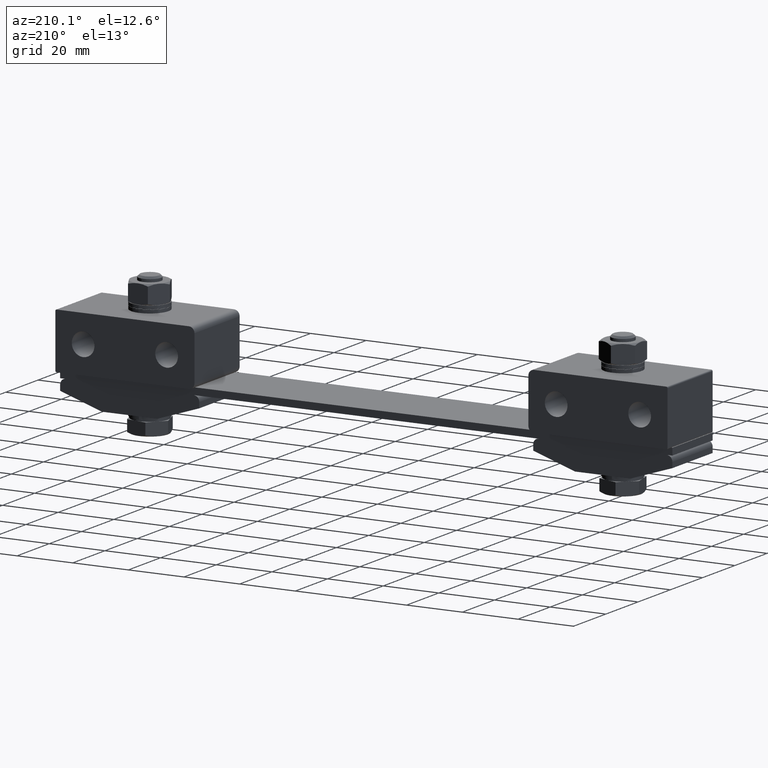
[diagram: clean part render]
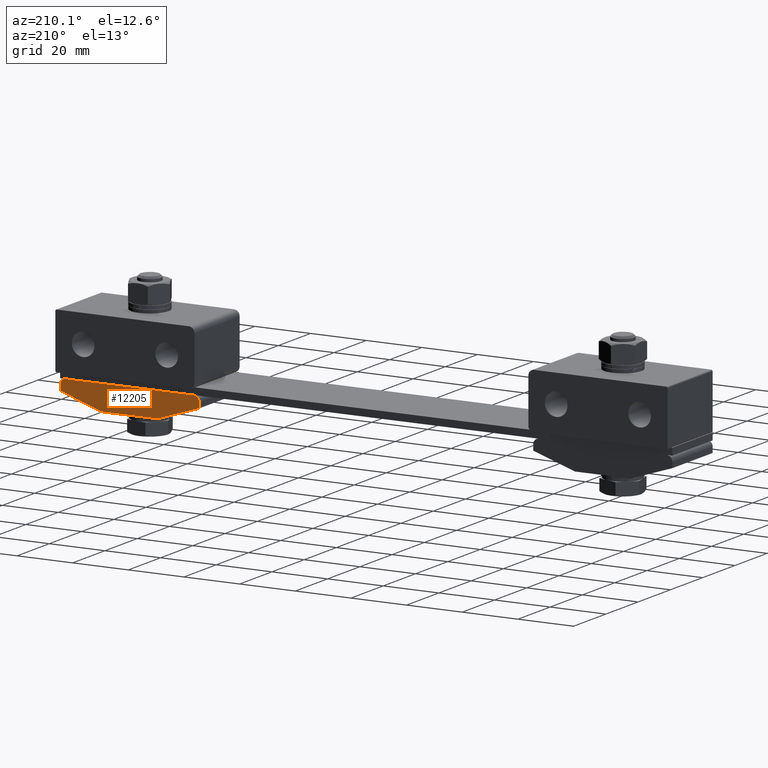
[diagram: same view with one face highlighted and labeled with its STEP entity id]
A machine part, auxiliary view. The second image highlights one B-rep face of the part: STEP entity #12205.
In plain terms, the highlighted planar face has unit normal (0, -1, 0).
Its self-contained STEP definition (entity closure, byte-faithful):
#212 = CARTESIAN_POINT ( 'NONE',  ( 108.0000000000000000, 12.50000000000000000, 0.0000000000000000000 ) ) ;
#771 = VERTEX_POINT ( 'NONE', #1650 ) ;
#875 = CIRCLE ( 'NONE', #9749, 2.000000000000000000 ) ;
#1189 = VERTEX_POINT ( 'NONE', #8980 ) ;
#1226 = ORIENTED_EDGE ( 'NONE', *, *, #5818, .T. ) ;
#1384 = VECTOR ( 'NONE', #18499, 1000.000000000000000 ) ;
#1650 = CARTESIAN_POINT ( 'NONE',  ( 60.00000000000000000, 12.50000000000000000, -4.000000000000000000 ) ) ;
#1692 = VECTOR ( 'NONE', #13028, 1000.000000000000000 ) ;
#1923 = LINE ( 'NONE', #2074, #1692 ) ;
#2025 = CARTESIAN_POINT ( 'NONE',  ( 62.00000000000000000, 12.50000000000000000, 0.0000000000000000000 ) ) ;
#2074 = CARTESIAN_POINT ( 'NONE',  ( 60.00000000000000000, 12.50000000000000000, 0.0000000000000000000 ) ) ;
#2103 = ORIENTED_EDGE ( 'NONE', *, *, #12933, .T. ) ;
#2581 = LINE ( 'NONE', #20199, #1384 ) ;
#3015 = EDGE_CURVE ( 'NONE', #11288, #1189, #12390, .T. ) ;
#3212 = CIRCLE ( 'NONE', #14133, 2.000000000000000000 ) ;
#3959 = DIRECTION ( 'NONE',  ( -1.000000000000000000, 0.0000000000000000000, 0.0000000000000000000 ) ) ;
#4072 = DIRECTION ( 'NONE',  ( -0.9486832980505137700, 0.0000000000000000000, 0.3162277660168380000 ) ) ;
#4906 = DIRECTION ( 'NONE',  ( -0.0000000000000000000, 1.000000000000000000, -0.0000000000000000000 ) ) ;
#4924 = PLANE ( 'NONE',  #18974 ) ;
#5339 = EDGE_CURVE ( 'NONE', #19501, #11288, #875, .T. ) ;
#5401 = CARTESIAN_POINT ( 'NONE',  ( 60.00000000000000000, 12.50000000000000000, 0.0000000000000000000 ) ) ;
#5818 = EDGE_CURVE ( 'NONE', #14405, #6852, #3212, .T. ) ;
#5952 = CARTESIAN_POINT ( 'NONE',  ( 62.00000000000000000, 12.50000000000000000, -2.000000000000000000 ) ) ;
#6406 = DIRECTION ( 'NONE',  ( 0.0000000000000000000, 0.0000000000000000000, -1.000000000000000000 ) ) ;
#6501 = VECTOR ( 'NONE', #9878, 1000.000000000000000 ) ;
#6602 = CARTESIAN_POINT ( 'NONE',  ( 108.0000000000000000, 12.50000000000000000, -2.000000000000000000 ) ) ;
#6800 = CARTESIAN_POINT ( 'NONE',  ( 110.0000000000000000, 12.50000000000000000, 0.0000000000000000000 ) ) ;
#6852 = VERTEX_POINT ( 'NONE', #2025 ) ;
#7029 = FACE_OUTER_BOUND ( 'NONE', #16319, .T. ) ;
#7240 = LINE ( 'NONE', #10500, #16104 ) ;
#8525 = CARTESIAN_POINT ( 'NONE',  ( 58.79999999999999700, 12.50000000000000000, -3.600000000000000100 ) ) ;
#8980 = CARTESIAN_POINT ( 'NONE',  ( 110.0000000000000000, 12.50000000000000000, -4.000000000000000000 ) ) ;
#9450 = CARTESIAN_POINT ( 'NONE',  ( 60.00000000000000000, 12.50000000000000000, 0.0000000000000000000 ) ) ;
#9501 = LINE ( 'NONE', #5401, #10007 ) ;
#9749 = AXIS2_PLACEMENT_3D ( 'NONE', #6602, #4906, #6406 ) ;
#9878 = DIRECTION ( 'NONE',  ( 0.0000000000000000000, 0.0000000000000000000, -1.000000000000000000 ) ) ;
#10007 = VECTOR ( 'NONE', #3959, 1000.000000000000000 ) ;
#10011 = ORIENTED_EDGE ( 'NONE', *, *, #5339, .T. ) ;
#10487 = DIRECTION ( 'NONE',  ( -0.0000000000000000000, 1.000000000000000000, -0.0000000000000000000 ) ) ;
#10488 = CARTESIAN_POINT ( 'NONE',  ( 60.00000000000000000, 12.50000000000000000, -2.000000000000000000 ) ) ;
#10500 = CARTESIAN_POINT ( 'NONE',  ( 66.19999999999998900, 12.50000000000000000, -18.59999999999999800 ) ) ;
#10506 = ORIENTED_EDGE ( 'NONE', *, *, #3015, .T. ) ;
#10622 = ORIENTED_EDGE ( 'NONE', *, *, #15281, .T. ) ;
#11177 = DIRECTION ( 'NONE',  ( 0.0000000000000000000, 0.0000000000000000000, -1.000000000000000000 ) ) ;
#11288 = VERTEX_POINT ( 'NONE', #19033 ) ;
#11971 = ORIENTED_EDGE ( 'NONE', *, *, #17041, .F. ) ;
#12063 = LINE ( 'NONE', #8525, #13770 ) ;
#12205 = ADVANCED_FACE ( 'NONE', ( #7029 ), #4924, .F. ) ;
#12390 = LINE ( 'NONE', #6800, #6501 ) ;
#12715 = DIRECTION ( 'NONE',  ( 0.0000000000000000000, -1.000000000000000000, 0.0000000000000000000 ) ) ;
#12933 = EDGE_CURVE ( 'NONE', #1189, #20109, #7240, .T. ) ;
#13028 = DIRECTION ( 'NONE',  ( 0.0000000000000000000, 0.0000000000000000000, -1.000000000000000000 ) ) ;
#13770 = VECTOR ( 'NONE', #4072, 999.9999999999998900 ) ;
#13842 = EDGE_CURVE ( 'NONE', #20109, #14018, #2581, .T. ) ;
#14018 = VERTEX_POINT ( 'NONE', #17323 ) ;
#14133 = AXIS2_PLACEMENT_3D ( 'NONE', #5952, #10487, #19911 ) ;
#14213 = CARTESIAN_POINT ( 'NONE',  ( 95.00000000000000000, 12.50000000000000000, -9.000000000000000000 ) ) ;
#14405 = VERTEX_POINT ( 'NONE', #10488 ) ;
#15246 = DIRECTION ( 'NONE',  ( -0.9486832980505137700, 0.0000000000000000000, -0.3162277660168380000 ) ) ;
#15281 = EDGE_CURVE ( 'NONE', #14018, #771, #12063, .T. ) ;
#16104 = VECTOR ( 'NONE', #15246, 999.9999999999998900 ) ;
#16173 = ORIENTED_EDGE ( 'NONE', *, *, #17915, .F. ) ;
#16319 = EDGE_LOOP ( 'NONE', ( #11971, #10011, #10506, #2103, #20143, #10622, #16173, #1226 ) ) ;
#17041 = EDGE_CURVE ( 'NONE', #19501, #6852, #9501, .T. ) ;
#17323 = CARTESIAN_POINT ( 'NONE',  ( 75.00000000000000000, 12.50000000000000000, -9.000000000000000000 ) ) ;
#17915 = EDGE_CURVE ( 'NONE', #14405, #771, #1923, .T. ) ;
#18499 = DIRECTION ( 'NONE',  ( -1.000000000000000000, 0.0000000000000000000, 0.0000000000000000000 ) ) ;
#18974 = AXIS2_PLACEMENT_3D ( 'NONE', #9450, #12715, #11177 ) ;
#19033 = CARTESIAN_POINT ( 'NONE',  ( 110.0000000000000000, 12.50000000000000000, -2.000000000000000000 ) ) ;
#19501 = VERTEX_POINT ( 'NONE', #212 ) ;
#19911 = DIRECTION ( 'NONE',  ( 0.0000000000000000000, 0.0000000000000000000, -1.000000000000000000 ) ) ;
#20109 = VERTEX_POINT ( 'NONE', #14213 ) ;
#20143 = ORIENTED_EDGE ( 'NONE', *, *, #13842, .T. ) ;
#20199 = CARTESIAN_POINT ( 'NONE',  ( 60.00000000000000000, 12.50000000000000000, -9.000000000000000000 ) ) ;